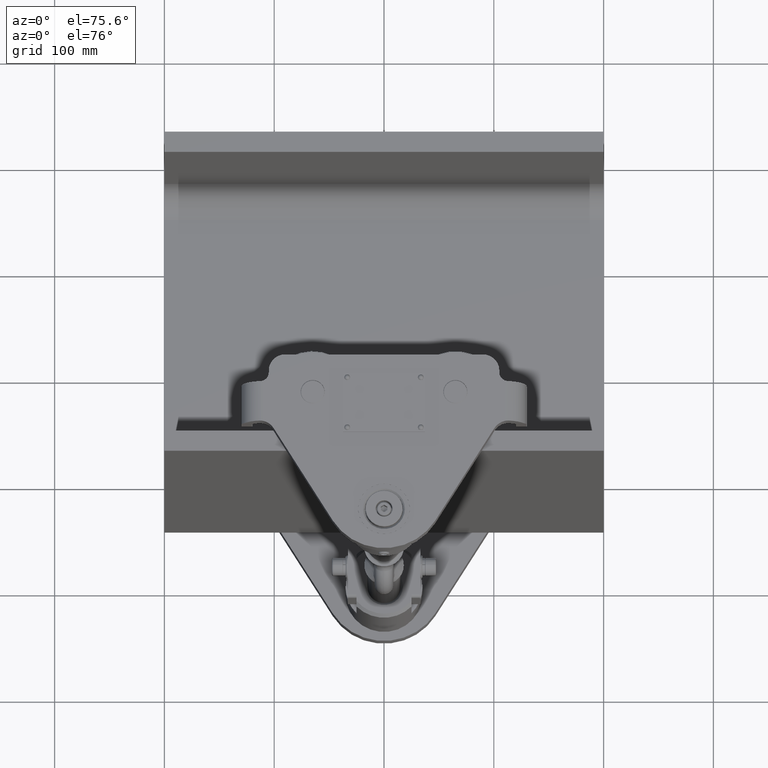
[diagram: clean part render]
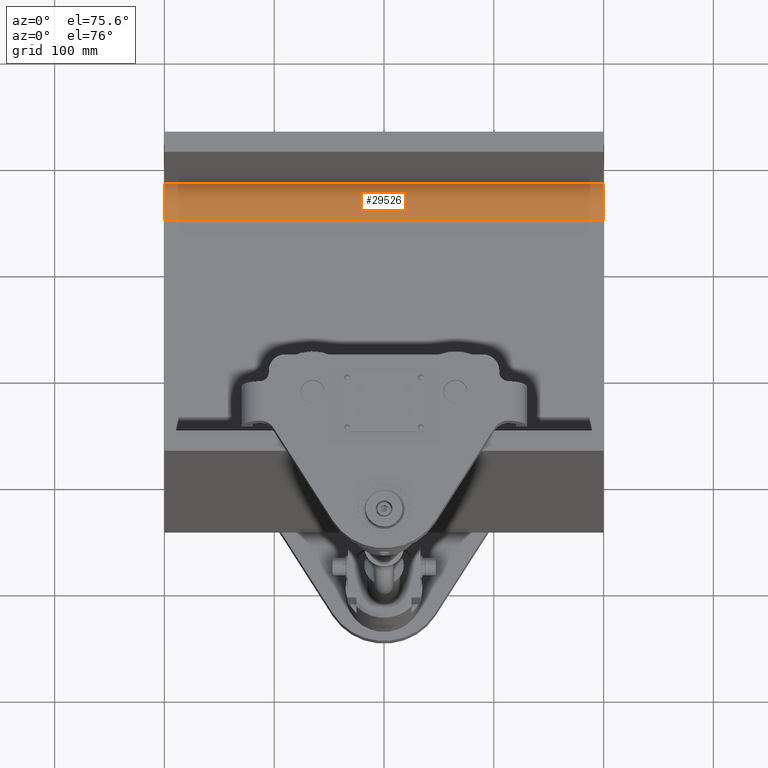
[diagram: same view with one face highlighted and labeled with its STEP entity id]
A machine part, auxiliary view. The second image highlights one B-rep face of the part: STEP entity #29526.
In plain terms, the highlighted cylindrical surface (edge-blend (fillet) strip) has radius 27 mm, axis along (1, 0, 0).
Its self-contained STEP definition (entity closure, byte-faithful):
#963 = CARTESIAN_POINT ( 'NONE',  ( -200.0000000000000000, 103.9999999999999300, 32.50000000000000000 ) ) ;
#4292 = CARTESIAN_POINT ( 'NONE',  ( 200.0000000000000000, 103.9999999999999300, 32.50000000000000000 ) ) ;
#8421 = VERTEX_POINT ( 'NONE', #27489 ) ;
#12256 = EDGE_CURVE ( 'NONE', #47607, #19085, #46978, .T. ) ;
#14163 = EDGE_CURVE ( 'NONE', #8421, #47607, #42180, .T. ) ;
#19085 = VERTEX_POINT ( 'NONE', #37685 ) ;
#19486 = EDGE_CURVE ( 'NONE', #8421, #28483, #53297, .T. ) ;
#20504 = ORIENTED_EDGE ( 'NONE', *, *, #44638, .F. ) ;
#21021 = DIRECTION ( 'NONE',  ( 1.000000000000000000, 0.0000000000000000000, 0.0000000000000000000 ) ) ;
#21433 = ORIENTED_EDGE ( 'NONE', *, *, #19486, .F. ) ;
#21723 = DIRECTION ( 'NONE',  ( 1.000000000000000000, 0.0000000000000000000, 0.0000000000000000000 ) ) ;
#22530 = FACE_OUTER_BOUND ( 'NONE', #39495, .T. ) ;
#27489 = CARTESIAN_POINT ( 'NONE',  ( -200.0000000000000000, 103.9999999999999300, 5.500000000000018700 ) ) ;
#28483 = VERTEX_POINT ( 'NONE', #29020 ) ;
#29020 = CARTESIAN_POINT ( 'NONE',  ( -200.0000000000000000, 130.9999999999998900, 32.49999999999999300 ) ) ;
#29140 = ORIENTED_EDGE ( 'NONE', *, *, #12256, .T. ) ;
#29246 = DIRECTION ( 'NONE',  ( 0.0000000000000000000, 0.0000000000000000000, -1.000000000000000000 ) ) ;
#29261 = AXIS2_PLACEMENT_3D ( 'NONE', #4292, #21021, #41676 ) ;
#29526 = ADVANCED_FACE ( 'NONE', ( #22530 ), #36107, .F. ) ;
#32312 = AXIS2_PLACEMENT_3D ( 'NONE', #53806, #33021, #29246 ) ;
#32813 = CARTESIAN_POINT ( 'NONE',  ( -200.0000000000000000, 103.9999999999999300, 5.500000000000018700 ) ) ;
#33021 = DIRECTION ( 'NONE',  ( 1.000000000000000000, 0.0000000000000000000, 0.0000000000000000000 ) ) ;
#34222 = DIRECTION ( 'NONE',  ( 0.0000000000000000000, 0.0000000000000000000, -1.000000000000000000 ) ) ;
#34439 = CARTESIAN_POINT ( 'NONE',  ( 200.0000000000000000, 103.9999999999999300, 5.500000000000018700 ) ) ;
#36075 = CARTESIAN_POINT ( 'NONE',  ( -200.0000000000000000, 130.9999999999998900, 32.49999999999999300 ) ) ;
#36107 = CYLINDRICAL_SURFACE ( 'NONE', #50336, 26.99999999999997500 ) ;
#36609 = DIRECTION ( 'NONE',  ( 1.000000000000000000, 0.0000000000000000000, 0.0000000000000000000 ) ) ;
#37685 = CARTESIAN_POINT ( 'NONE',  ( 200.0000000000000000, 130.9999999999998900, 32.49999999999999300 ) ) ;
#38972 = VECTOR ( 'NONE', #53414, 1000.000000000000000 ) ;
#39495 = EDGE_LOOP ( 'NONE', ( #29140, #20504, #21433, #53778 ) ) ;
#39843 = VECTOR ( 'NONE', #36609, 1000.000000000000000 ) ;
#41676 = DIRECTION ( 'NONE',  ( 0.0000000000000000000, 0.0000000000000000000, -1.000000000000000000 ) ) ;
#42180 = LINE ( 'NONE', #32813, #38972 ) ;
#44638 = EDGE_CURVE ( 'NONE', #28483, #19085, #49674, .T. ) ;
#46978 = CIRCLE ( 'NONE', #29261, 26.99999999999997500 ) ;
#47607 = VERTEX_POINT ( 'NONE', #34439 ) ;
#49674 = LINE ( 'NONE', #36075, #39843 ) ;
#50336 = AXIS2_PLACEMENT_3D ( 'NONE', #963, #21723, #34222 ) ;
#53297 = CIRCLE ( 'NONE', #32312, 26.99999999999997500 ) ;
#53414 = DIRECTION ( 'NONE',  ( 1.000000000000000000, 0.0000000000000000000, 0.0000000000000000000 ) ) ;
#53778 = ORIENTED_EDGE ( 'NONE', *, *, #14163, .T. ) ;
#53806 = CARTESIAN_POINT ( 'NONE',  ( -200.0000000000000000, 103.9999999999999300, 32.50000000000000000 ) ) ;